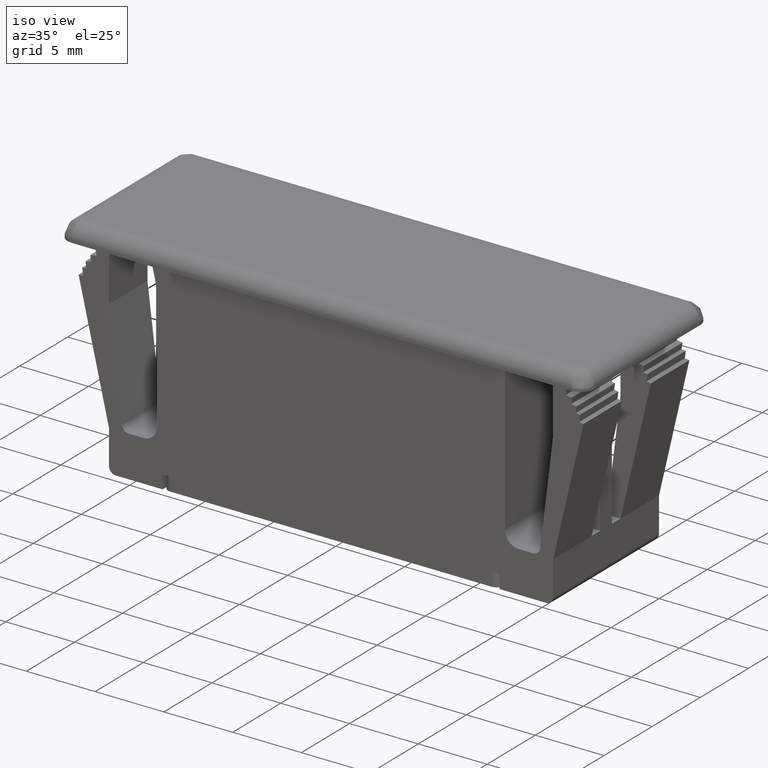
[diagram: clean part render]
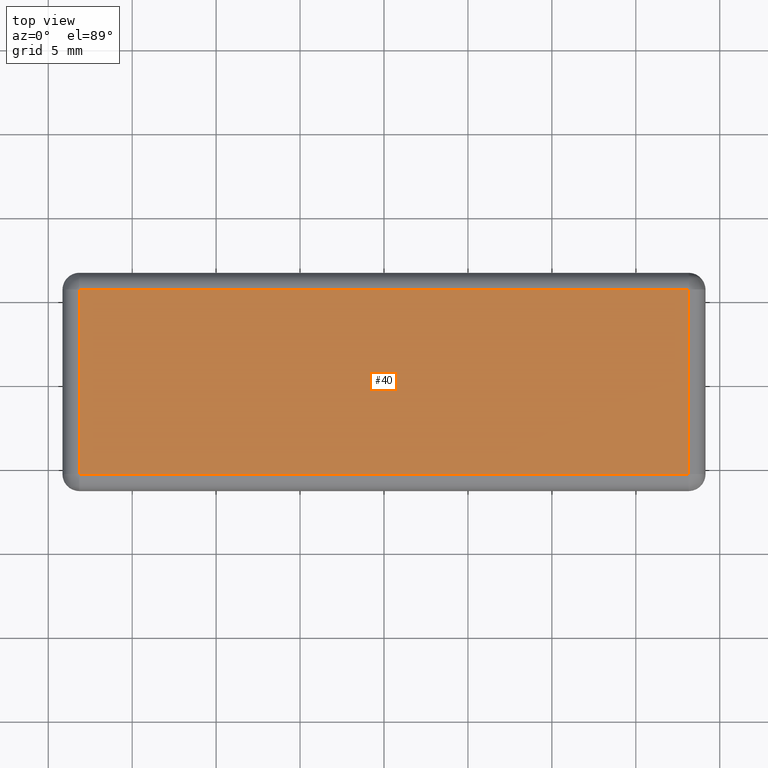
[diagram: tour spotlight — one face highlighted and labeled with its STEP entity id]
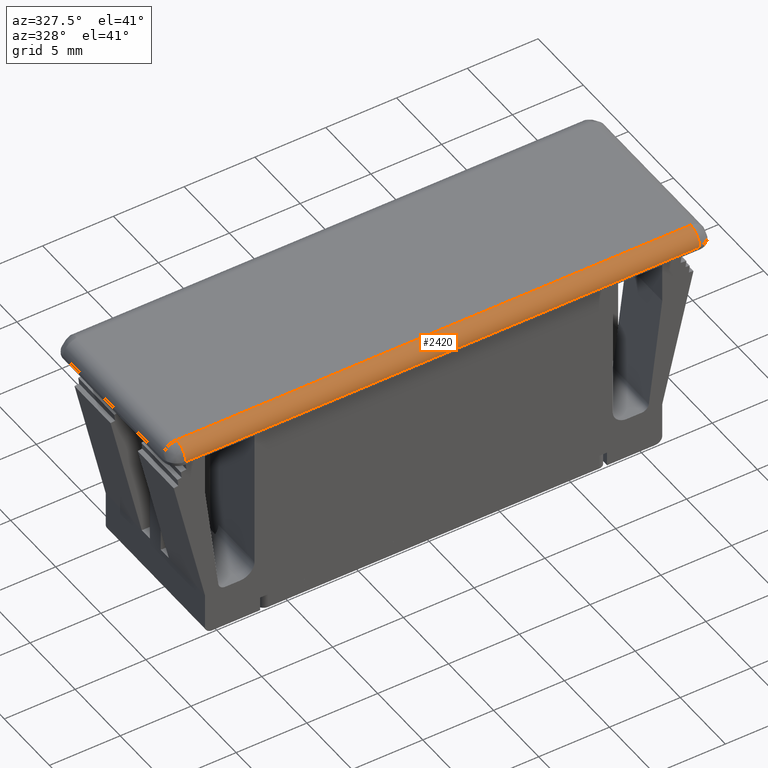
[diagram: tour spotlight — one face highlighted and labeled with its STEP entity id]
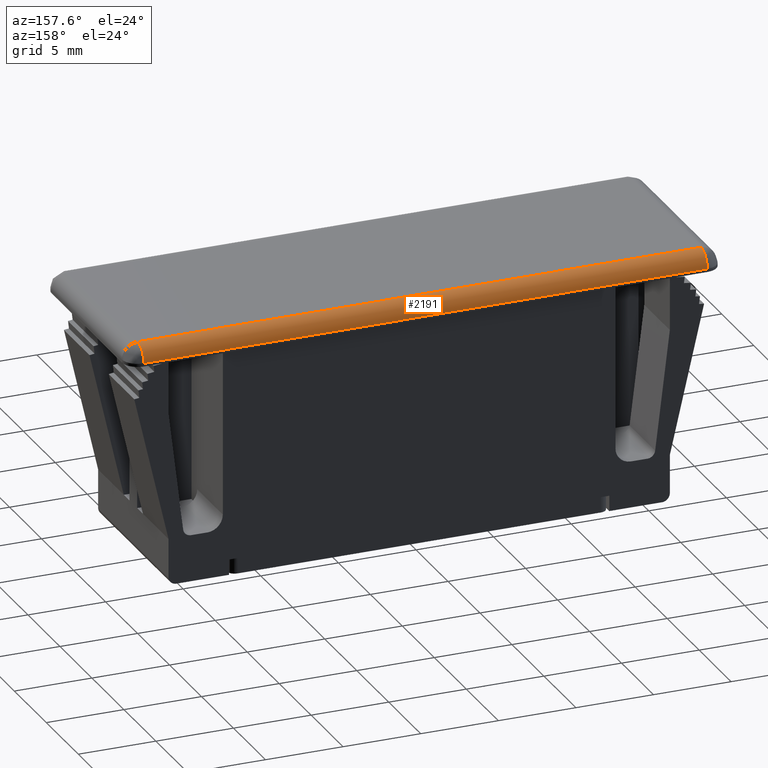
[diagram: tour spotlight — one face highlighted and labeled with its STEP entity id]
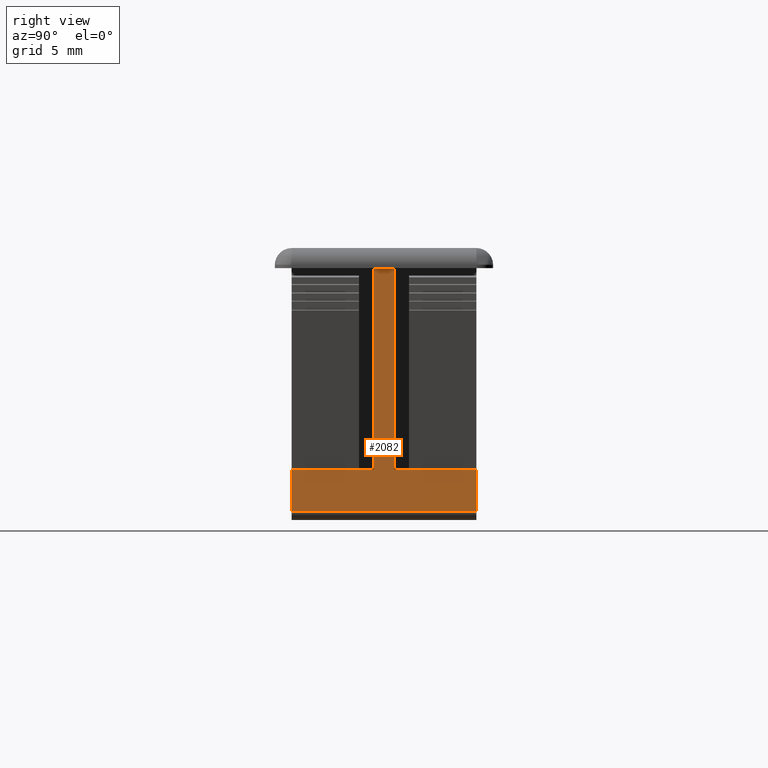
[diagram: tour spotlight — one face highlighted and labeled with its STEP entity id]
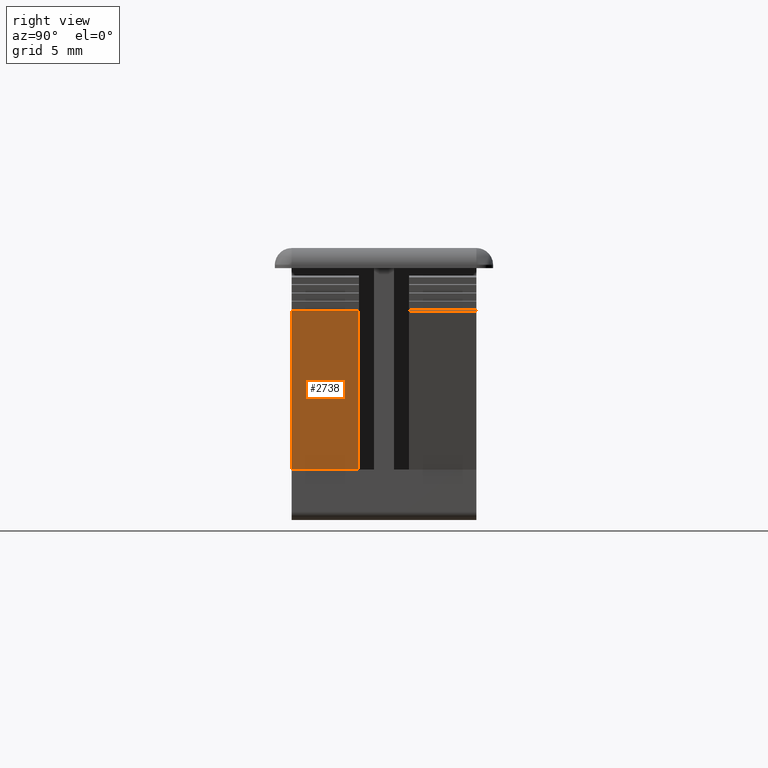
[diagram: tour spotlight — one face highlighted and labeled with its STEP entity id]
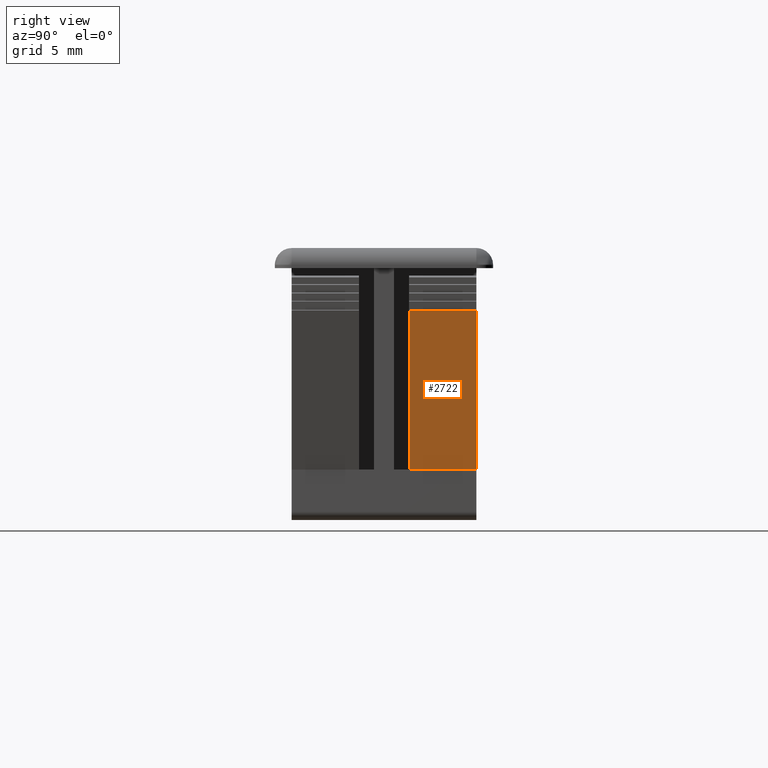
[diagram: tour spotlight — one face highlighted and labeled with its STEP entity id]
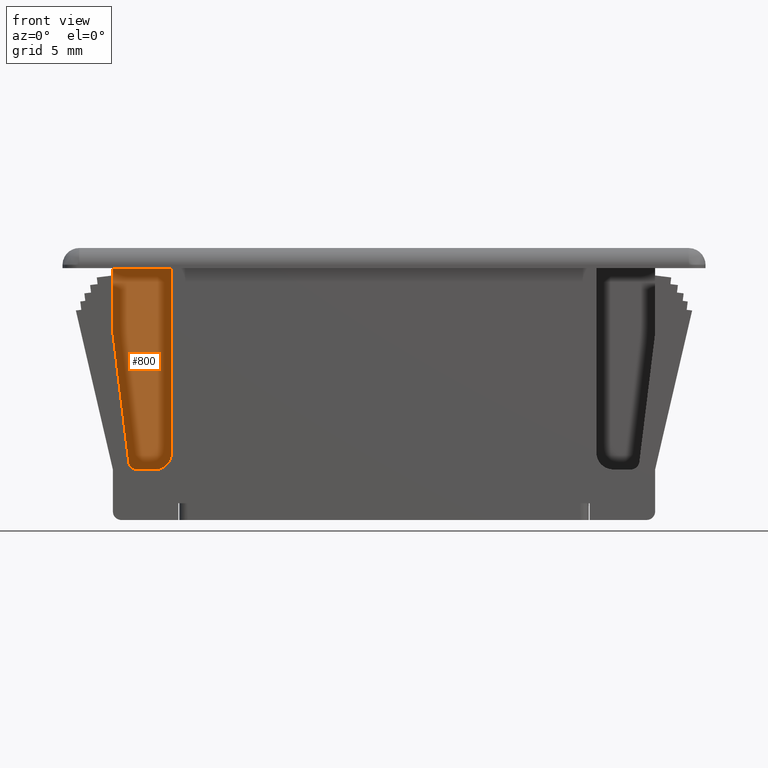
[diagram: tour spotlight — one face highlighted and labeled with its STEP entity id]
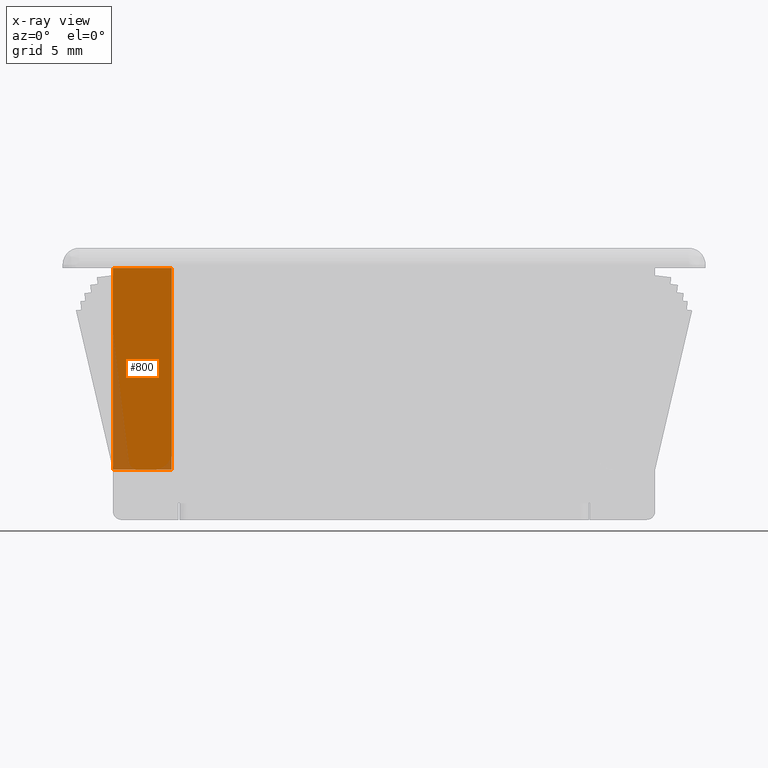
[diagram: x-ray of the same camera — body ghosted, this tour face saturated]
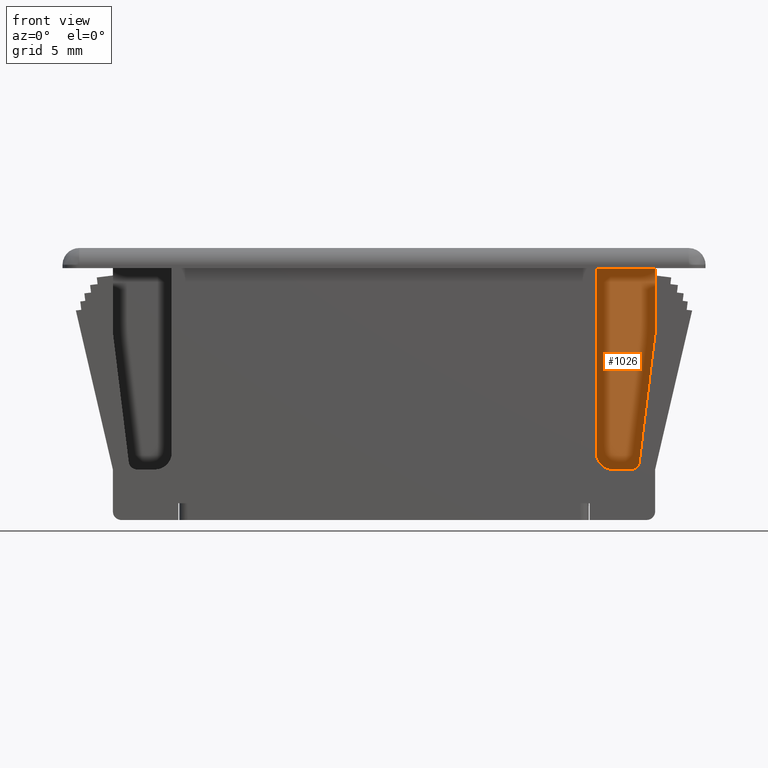
[diagram: tour spotlight — one face highlighted and labeled with its STEP entity id]
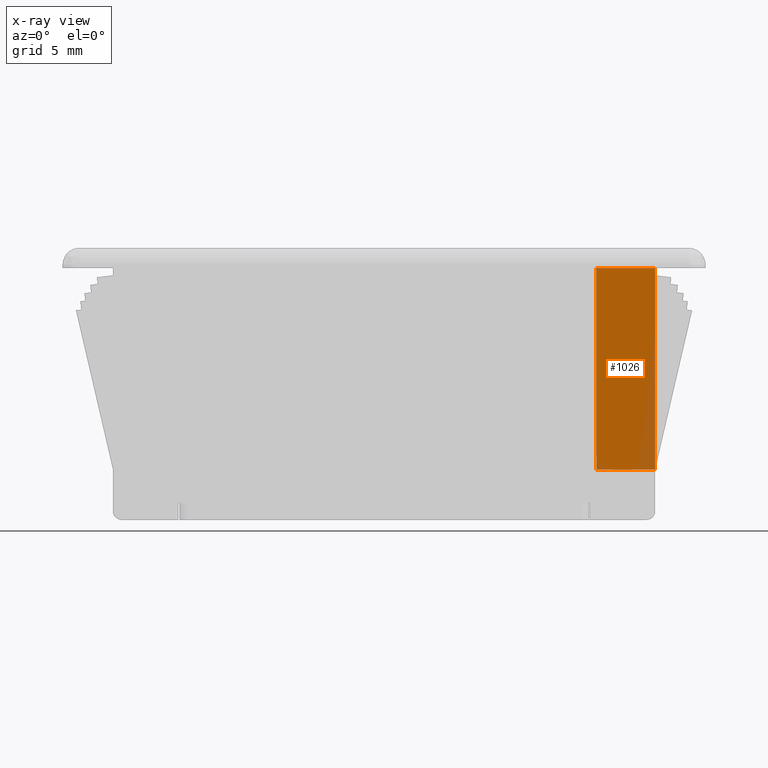
[diagram: x-ray of the same camera — body ghosted, this tour face saturated]
A machine part: a face-by-face anatomy tour. The part has 120 B-rep faces; the first image is the clean iso view, then the 8 largest visible faces are spotlighted one at a time (largest first), each with its STEP entity span.

Face 1 — top view, entity #40. In plain terms, the highlighted face is a freeform B-spline surface patch.
Definition (entity closure, byte-faithful):
#5=CARTESIAN_POINT('',(-19.963184929643820,6.049449978679864,0.0));
#6=CARTESIAN_POINT('',(19.963185903285439,6.049449978679864,0.0));
#7=CARTESIAN_POINT('',(-19.963184929643820,-6.049450273722856,0.0));
#8=CARTESIAN_POINT('',(19.963185903285439,-6.049450273722856,0.0));
#9=B_SPLINE_SURFACE_WITH_KNOTS('',1,1,((#5,#7),(#6,#8)),.UNSPECIFIED.,.F.,.F.,.U.,(2,2),(2,2),(0.0,39.926370832929258),(0.0,12.098900252402720),.UNSPECIFIED.);
#10=CARTESIAN_POINT('',(-18.150000000000251,-5.500000000000000,0.0));
#11=VERTEX_POINT('',#10);
#12=CARTESIAN_POINT('',(18.149999999999999,-5.500000000000000,0.0));
#13=VERTEX_POINT('',#12);
#14=CARTESIAN_POINT('',(-18.150000000000251,-5.500000000000000,0.0));
#15=CARTESIAN_POINT('',(18.149999999999999,-5.500000000000000,0.0));
#16=QUASI_UNIFORM_CURVE('',1,(#14,#15),.UNSPECIFIED.,.F.,.U.);
#17=EDGE_CURVE('',#11,#13,#16,.T.);
#18=ORIENTED_EDGE('',*,*,#17,.T.);
#19=CARTESIAN_POINT('',(18.149999999999999,5.500000000000000,0.0));
#20=VERTEX_POINT('',#19);
#21=CARTESIAN_POINT('',(18.149999999999999,-5.500000000000000,0.0));
#22=CARTESIAN_POINT('',(18.149999999999999,5.500000000000000,0.0));
#23=QUASI_UNIFORM_CURVE('',1,(#21,#22),.UNSPECIFIED.,.F.,.U.);
#24=EDGE_CURVE('',#13,#20,#23,.T.);
#25=ORIENTED_EDGE('',*,*,#24,.T.);
#26=CARTESIAN_POINT('',(-18.149999999999750,5.500000000000000,0.0));
#27=VERTEX_POINT('',#26);
#28=CARTESIAN_POINT('',(18.149999999999999,5.500000000000000,0.0));
#29=CARTESIAN_POINT('',(-18.149999999999750,5.500000000000000,0.0));
#30=QUASI_UNIFORM_CURVE('',1,(#28,#29),.UNSPECIFIED.,.F.,.U.);
#31=EDGE_CURVE('',#20,#27,#30,.T.);
#32=ORIENTED_EDGE('',*,*,#31,.T.);
#33=CARTESIAN_POINT('',(-18.149999999999750,5.500000000000000,0.0));
#34=CARTESIAN_POINT('',(-18.150000000000251,-5.500000000000000,0.0));
#35=QUASI_UNIFORM_CURVE('',1,(#33,#34),.UNSPECIFIED.,.F.,.U.);
#36=EDGE_CURVE('',#27,#11,#35,.T.);
#37=ORIENTED_EDGE('',*,*,#36,.T.);
#38=EDGE_LOOP('',(#18,#25,#32,#37));
#39=FACE_OUTER_BOUND('',#38,.T.);
#40=ADVANCED_FACE('',(#39),#9,.F.);

Face 2 — auxiliary view, entity #2420. In plain terms, the highlighted face is a freeform B-spline surface patch.
Definition (entity closure, byte-faithful):
#10=CARTESIAN_POINT('',(-18.150000000000251,-5.500000000000000,0.0));
#11=VERTEX_POINT('',#10);
#12=CARTESIAN_POINT('',(18.149999999999999,-5.500000000000000,0.0));
#13=VERTEX_POINT('',#12);
#14=CARTESIAN_POINT('',(-18.150000000000251,-5.500000000000000,0.0));
#15=CARTESIAN_POINT('',(18.149999999999999,-5.500000000000000,0.0));
#16=QUASI_UNIFORM_CURVE('',1,(#14,#15),.UNSPECIFIED.,.F.,.U.);
#17=EDGE_CURVE('',#11,#13,#16,.T.);
#2311=CARTESIAN_POINT('',(18.149999999999999,-6.500000000000000,-1.0));
#2312=VERTEX_POINT('',#2311);
#2313=CARTESIAN_POINT('',(18.149999999999999,-5.500000000000000,0.0));
#2314=CARTESIAN_POINT('',(18.150000000000002,-6.500000000000001,0.0));
#2315=CARTESIAN_POINT('',(18.149999999999999,-6.500000000000000,-1.0));
#2323=(BOUNDED_CURVE()B_SPLINE_CURVE(2,(#2313,#2314,#2315),.UNSPECIFIED.,.F.,.U.)CURVE()GEOMETRIC_REPRESENTATION_ITEM()QUASI_UNIFORM_CURVE()RATIONAL_B_SPLINE_CURVE((1.0,0.707106781186548,1.0))REPRESENTATION_ITEM(''));
#2324=EDGE_CURVE('',#13,#2312,#2323,.T.);
#2382=CARTESIAN_POINT('',(19.057500000000012,-5.473823051692127,-0.000342675024443));
#2383=CARTESIAN_POINT('',(-19.080187500000260,-5.473823051692127,-0.000342675024443));
#2384=CARTESIAN_POINT('',(19.057500000000005,-6.574984800554720,0.028492260166261));
#2385=CARTESIAN_POINT('',(-19.080187500000253,-6.574984800554720,0.028492260166261));
#2386=CARTESIAN_POINT('',(19.057500000000015,-6.497524479380811,-1.070320075625985));
#2387=CARTESIAN_POINT('',(-19.080187500000267,-6.497524479380811,-1.070320075625985));
#2395=(BOUNDED_SURFACE()B_SPLINE_SURFACE(1,2,((#2382,#2384,#2386),(#2383,#2385,#2387)),.UNSPECIFIED.,.F.,.F.,.U.)B_SPLINE_SURFACE_WITH_KNOTS((2,2),(3,3),(0.0,38.137687500000283),(0.0,0.994518632334191),.UNSPECIFIED.)GEOMETRIC_REPRESENTATION_ITEM()RATIONAL_B_SPLINE_SURFACE(((1.0,0.670944223154768,0.996392648609106),(1.0,0.670944223154768,0.996392648609106)))REPRESENTATION_ITEM('')SURFACE());
#2396=CARTESIAN_POINT('',(-18.149999999999999,-6.500000000000000,-1.0));
#2397=VERTEX_POINT('',#2396);
#2398=CARTESIAN_POINT('',(-18.150000000000251,-5.500000000000000,0.0));
#2399=CARTESIAN_POINT('',(-18.150000000000002,-6.500000000000001,0.0));
#2400=CARTESIAN_POINT('',(-18.149999999999999,-6.500000000000000,-1.0));
#2408=(BOUNDED_CURVE()B_SPLINE_CURVE(2,(#2398,#2399,#2400),.UNSPECIFIED.,.F.,.U.)CURVE()GEOMETRIC_REPRESENTATION_ITEM()QUASI_UNIFORM_CURVE()RATIONAL_B_SPLINE_CURVE((1.0,0.707106781186548,1.0))REPRESENTATION_ITEM(''));
#2409=EDGE_CURVE('',#11,#2397,#2408,.T.);
#2410=ORIENTED_EDGE('',*,*,#2409,.T.);
#2411=CARTESIAN_POINT('',(18.149999999999999,-6.500000000000000,-1.0));
#2412=CARTESIAN_POINT('',(-18.149999999999999,-6.500000000000000,-1.0));
#2413=QUASI_UNIFORM_CURVE('',1,(#2411,#2412),.UNSPECIFIED.,.F.,.U.);
#2414=EDGE_CURVE('',#2312,#2397,#2413,.T.);
#2415=ORIENTED_EDGE('',*,*,#2414,.F.);
#2416=ORIENTED_EDGE('',*,*,#2324,.F.);
#2417=ORIENTED_EDGE('',*,*,#17,.F.);
#2418=EDGE_LOOP('',(#2410,#2415,#2416,#2417));
#2419=FACE_OUTER_BOUND('',#2418,.T.);
#2420=ADVANCED_FACE('',(#2419),#2395,.T.);

Face 3 — auxiliary view, entity #2191. In plain terms, the highlighted face is a freeform B-spline surface patch.
Definition (entity closure, byte-faithful):
#19=CARTESIAN_POINT('',(18.149999999999999,5.500000000000000,0.0));
#20=VERTEX_POINT('',#19);
#26=CARTESIAN_POINT('',(-18.149999999999750,5.500000000000000,0.0));
#27=VERTEX_POINT('',#26);
#28=CARTESIAN_POINT('',(18.149999999999999,5.500000000000000,0.0));
#29=CARTESIAN_POINT('',(-18.149999999999750,5.500000000000000,0.0));
#30=QUASI_UNIFORM_CURVE('',1,(#28,#29),.UNSPECIFIED.,.F.,.U.);
#31=EDGE_CURVE('',#20,#27,#30,.T.);
#2122=CARTESIAN_POINT('',(18.149999999999999,6.500000000000000,-1.0));
#2123=VERTEX_POINT('',#2122);
#2137=CARTESIAN_POINT('',(18.149999999999999,6.500000000000000,-1.0));
#2138=CARTESIAN_POINT('',(18.150000000000002,6.500000000000001,0.0));
#2139=CARTESIAN_POINT('',(18.149999999999999,5.500000000000000,0.0));
#2147=(BOUNDED_CURVE()B_SPLINE_CURVE(2,(#2137,#2138,#2139),.UNSPECIFIED.,.F.,.U.)CURVE()GEOMETRIC_REPRESENTATION_ITEM()QUASI_UNIFORM_CURVE()RATIONAL_B_SPLINE_CURVE((1.0,0.707106781186548,1.0))REPRESENTATION_ITEM(''));
#2148=EDGE_CURVE('',#2123,#20,#2147,.T.);
#2153=CARTESIAN_POINT('',(-19.057499999999749,5.473823051692127,-0.000342675024443));
#2154=CARTESIAN_POINT('',(19.080187500000001,5.473823051692127,-0.000342675024443));
#2155=CARTESIAN_POINT('',(-19.057499999999752,6.574984800554720,0.028492260166261));
#2156=CARTESIAN_POINT('',(19.080187499999997,6.574984800554720,0.028492260166261));
#2157=CARTESIAN_POINT('',(-19.057499999999742,6.497524479380811,-1.070320075625985));
#2158=CARTESIAN_POINT('',(19.080187500000005,6.497524479380811,-1.070320075625985));
#2166=(BOUNDED_SURFACE()B_SPLINE_SURFACE(1,2,((#2153,#2155,#2157),(#2154,#2156,#2158)),.UNSPECIFIED.,.F.,.F.,.U.)B_SPLINE_SURFACE_WITH_KNOTS((2,2),(3,3),(0.0,38.137687499999750),(0.0,0.994518632334191),.UNSPECIFIED.)GEOMETRIC_REPRESENTATION_ITEM()RATIONAL_B_SPLINE_SURFACE(((1.0,0.670944223154768,0.996392648609106),(1.0,0.670944223154768,0.996392648609106)))REPRESENTATION_ITEM('')SURFACE());
#2167=CARTESIAN_POINT('',(-18.149999999999750,6.500000000000000,-1.0));
#2168=VERTEX_POINT('',#2167);
#2169=CARTESIAN_POINT('',(-18.149999999999750,6.500000000000000,-1.0));
#2170=CARTESIAN_POINT('',(-18.149999999999746,6.500000000000001,0.0));
#2171=CARTESIAN_POINT('',(-18.149999999999750,5.500000000000000,0.0));
#2179=(BOUNDED_CURVE()B_SPLINE_CURVE(2,(#2169,#2170,#2171),.UNSPECIFIED.,.F.,.U.)CURVE()GEOMETRIC_REPRESENTATION_ITEM()QUASI_UNIFORM_CURVE()RATIONAL_B_SPLINE_CURVE((1.0,0.707106781186548,1.0))REPRESENTATION_ITEM(''));
#2180=EDGE_CURVE('',#2168,#27,#2179,.T.);
#2181=ORIENTED_EDGE('',*,*,#2180,.T.);
#2182=ORIENTED_EDGE('',*,*,#31,.F.);
#2183=ORIENTED_EDGE('',*,*,#2148,.F.);
#2184=CARTESIAN_POINT('',(-18.149999999999750,6.500000000000000,-1.0));
#2185=CARTESIAN_POINT('',(18.149999999999999,6.500000000000000,-1.0));
#2186=QUASI_UNIFORM_CURVE('',1,(#2184,#2185),.UNSPECIFIED.,.F.,.U.);
#2187=EDGE_CURVE('',#2168,#2123,#2186,.T.);
#2188=ORIENTED_EDGE('',*,*,#2187,.F.);
#2189=EDGE_LOOP('',(#2181,#2182,#2183,#2188));
#2190=FACE_OUTER_BOUND('',#2189,.T.);
#2191=ADVANCED_FACE('',(#2190),#2166,.T.);

Face 4 — right view, entity #2082. In plain terms, the highlighted face is a freeform B-spline surface patch.
Definition (entity closure, byte-faithful):
#960=CARTESIAN_POINT('',(16.150000000000450,0.600000000000051,-1.200000000000016));
#961=VERTEX_POINT('',#960);
#962=CARTESIAN_POINT('',(16.150000000000450,0.600000000000051,-13.199999999916900));
#963=VERTEX_POINT('',#962);
#964=CARTESIAN_POINT('',(16.150000000000450,0.600000000000051,-1.200000000000016));
#965=CARTESIAN_POINT('',(16.150000000000450,0.600000000000051,-13.199999999916900));
#966=QUASI_UNIFORM_CURVE('',1,(#964,#965),.UNSPECIFIED.,.F.,.U.);
#967=EDGE_CURVE('',#961,#963,#966,.T.);
#996=CARTESIAN_POINT('',(16.149999999994350,-0.599999999999934,-13.199999999926320));
#997=VERTEX_POINT('',#996);
#998=CARTESIAN_POINT('',(16.150000000000450,-0.599999999999938,-1.200000000000016));
#999=VERTEX_POINT('',#998);
#1000=CARTESIAN_POINT('',(16.149999999994350,-0.599999999999934,-13.199999999926320));
#1001=CARTESIAN_POINT('',(16.150000000000450,-0.599999999999938,-1.200000000000016));
#1002=QUASI_UNIFORM_CURVE('',1,(#1000,#1001),.UNSPECIFIED.,.F.,.U.);
#1003=EDGE_CURVE('',#997,#999,#1002,.T.);
#1185=CARTESIAN_POINT('',(16.149999999994350,-1.499999999999946,-13.199999999926320));
#1186=VERTEX_POINT('',#1185);
#1220=CARTESIAN_POINT('',(16.150000000000450,1.500000000000055,-13.199999999917461));
#1221=VERTEX_POINT('',#1220);
#1471=CARTESIAN_POINT('',(16.149999999994350,5.500000000000000,-13.199999999926320));
#1472=VERTEX_POINT('',#1471);
#1478=CARTESIAN_POINT('',(16.150000000000450,5.500000000000000,-15.699999999999999));
#1479=VERTEX_POINT('',#1478);
#1480=CARTESIAN_POINT('',(16.149999999994350,5.500000000000000,-13.199999999926320));
#1481=CARTESIAN_POINT('',(16.150000000000450,5.500000000000000,-15.699999999999999));
#1482=QUASI_UNIFORM_CURVE('',1,(#1480,#1481),.UNSPECIFIED.,.F.,.U.);
#1483=EDGE_CURVE('',#1472,#1479,#1482,.T.);
#1723=CARTESIAN_POINT('',(16.150000000000450,-5.500000000000000,-15.699999999999999));
#1724=VERTEX_POINT('',#1723);
#1738=CARTESIAN_POINT('',(16.149999999994350,-5.500000000000000,-13.199999999926320));
#1739=VERTEX_POINT('',#1738);
#1740=CARTESIAN_POINT('',(16.149999999994350,-5.500000000000000,-13.199999999926320));
#1741=CARTESIAN_POINT('',(16.150000000000450,-5.500000000000000,-15.699999999999999));
#1742=QUASI_UNIFORM_CURVE('',1,(#1740,#1741),.UNSPECIFIED.,.F.,.U.);
#1743=EDGE_CURVE('',#1739,#1724,#1742,.T.);
#2035=CARTESIAN_POINT('',(16.150000000000450,-5.500000000000000,-15.699999999999999));
#2036=CARTESIAN_POINT('',(16.150000000000450,5.500000000000000,-15.699999999999999));
#2037=QUASI_UNIFORM_CURVE('',1,(#2035,#2036),.UNSPECIFIED.,.F.,.U.);
#2038=EDGE_CURVE('',#1724,#1479,#2037,.T.);
#2045=CARTESIAN_POINT('',(16.150000000000450,-6.049449978679864,-0.475725028103830));
#2046=CARTESIAN_POINT('',(16.150000000000450,-6.049449978679864,-16.424275360816502));
#2047=CARTESIAN_POINT('',(16.150000000000450,6.049450273722856,-0.475725028103830));
#2048=CARTESIAN_POINT('',(16.150000000000450,6.049450273722856,-16.424275360816502));
#2049=B_SPLINE_SURFACE_WITH_KNOTS('',1,1,((#2045,#2047),(#2046,#2048)),.UNSPECIFIED.,.F.,.F.,.U.,(2,2),(2,2),(0.0,15.948550332712660),(0.0,12.098900252402720),.UNSPECIFIED.);
#2050=ORIENTED_EDGE('',*,*,#1483,.F.);
#2051=CARTESIAN_POINT('',(16.150000000000450,1.500000000000055,-13.199999999917461));
#2052=CARTESIAN_POINT('',(16.149999999994350,5.500000000000000,-13.199999999926320));
#2053=QUASI_UNIFORM_CURVE('',1,(#2051,#2052),.UNSPECIFIED.,.F.,.U.);
#2054=EDGE_CURVE('',#1221,#1472,#2053,.T.);
#2055=ORIENTED_EDGE('',*,*,#2054,.F.);
#2056=CARTESIAN_POINT('',(16.150000000000450,0.600000000000051,-13.199999999916900));
#2057=CARTESIAN_POINT('',(16.150000000000450,1.500000000000055,-13.199999999917461));
#2058=QUASI_UNIFORM_CURVE('',1,(#2056,#2057),.UNSPECIFIED.,.F.,.U.);
#2059=EDGE_CURVE('',#963,#1221,#2058,.T.);
#2060=ORIENTED_EDGE('',*,*,#2059,.F.);
#2061=ORIENTED_EDGE('',*,*,#967,.F.);
#2062=CARTESIAN_POINT('',(16.150000000000450,-0.599999999999938,-1.200000000000016));
#2063=CARTESIAN_POINT('',(16.150000000000450,0.600000000000051,-1.200000000000016));
#2064=QUASI_UNIFORM_CURVE('',1,(#2062,#2063),.UNSPECIFIED.,.F.,.U.);
#2065=EDGE_CURVE('',#999,#961,#2064,.T.);
#2066=ORIENTED_EDGE('',*,*,#2065,.F.);
#2067=ORIENTED_EDGE('',*,*,#1003,.F.);
#2068=CARTESIAN_POINT('',(16.149999999994350,-1.499999999999946,-13.199999999926320));
#2069=CARTESIAN_POINT('',(16.149999999994350,-0.599999999999934,-13.199999999926320));
#2070=QUASI_UNIFORM_CURVE('',1,(#2068,#2069),.UNSPECIFIED.,.F.,.U.);
#2071=EDGE_CURVE('',#1186,#997,#2070,.T.);
#2072=ORIENTED_EDGE('',*,*,#2071,.F.);
#2073=CARTESIAN_POINT('',(16.149999999994350,-5.500000000000000,-13.199999999926320));
#2074=CARTESIAN_POINT('',(16.149999999994350,-1.499999999999946,-13.199999999926320));
#2075=QUASI_UNIFORM_CURVE('',1,(#2073,#2074),.UNSPECIFIED.,.F.,.U.);
#2076=EDGE_CURVE('',#1739,#1186,#2075,.T.);
#2077=ORIENTED_EDGE('',*,*,#2076,.F.);
#2078=ORIENTED_EDGE('',*,*,#1743,.T.);
#2079=ORIENTED_EDGE('',*,*,#2038,.T.);
#2080=EDGE_LOOP('',(#2050,#2055,#2060,#2061,#2066,#2067,#2072,#2077,#2078,#2079));
#2081=FACE_OUTER_BOUND('',#2080,.T.);
#2082=ADVANCED_FACE('',(#2081),#2049,.T.);

Face 5 — right view, entity #2738. In plain terms, the highlighted face is a freeform B-spline surface patch.
Definition (entity closure, byte-faithful):
#1178=CARTESIAN_POINT('',(18.355609146990648,-1.499999999999946,-3.721429881298120));
#1179=VERTEX_POINT('',#1178);
#1185=CARTESIAN_POINT('',(16.149999999994350,-1.499999999999946,-13.199999999926320));
#1186=VERTEX_POINT('',#1185);
#1187=CARTESIAN_POINT('',(16.149999999994350,-1.499999999999946,-13.199999999926320));
#1188=CARTESIAN_POINT('',(18.355609146990648,-1.499999999999946,-3.721429881298120));
#1189=QUASI_UNIFORM_CURVE('',1,(#1187,#1188),.UNSPECIFIED.,.F.,.U.);
#1190=EDGE_CURVE('',#1186,#1179,#1189,.T.);
#1738=CARTESIAN_POINT('',(16.149999999994350,-5.500000000000000,-13.199999999926320));
#1739=VERTEX_POINT('',#1738);
#1745=CARTESIAN_POINT('',(18.355609146990648,-5.500000000000000,-3.721429881298120));
#1746=VERTEX_POINT('',#1745);
#1747=CARTESIAN_POINT('',(18.355609146990648,-5.500000000000000,-3.721429881298120));
#1748=CARTESIAN_POINT('',(16.149999999994350,-5.500000000000000,-13.199999999926320));
#1749=QUASI_UNIFORM_CURVE('',1,(#1747,#1748),.UNSPECIFIED.,.F.,.U.);
#1750=EDGE_CURVE('',#1746,#1739,#1749,.T.);
#2073=CARTESIAN_POINT('',(16.149999999994350,-5.500000000000000,-13.199999999926320));
#2074=CARTESIAN_POINT('',(16.149999999994350,-1.499999999999946,-13.199999999926320));
#2075=QUASI_UNIFORM_CURVE('',1,(#2073,#2074),.UNSPECIFIED.,.F.,.U.);
#2076=EDGE_CURVE('',#1739,#1186,#2075,.T.);
#2723=CARTESIAN_POINT('',(18.465779319608220,-5.699799992247227,-3.247975322243950));
#2724=CARTESIAN_POINT('',(16.039829768217739,-5.699799992247227,-13.673454813215560));
#2725=CARTESIAN_POINT('',(18.465779319608220,-1.300199900464359,-3.247975322243950));
#2726=CARTESIAN_POINT('',(16.039829768217739,-1.300199900464359,-13.673454813215560));
#2727=B_SPLINE_SURFACE_WITH_KNOTS('',1,1,((#2723,#2725),(#2724,#2726)),.UNSPECIFIED.,.F.,.F.,.U.,(2,2),(2,2),(0.0,10.704011109979350),(0.0,4.399600091782868),.UNSPECIFIED.);
#2728=ORIENTED_EDGE('',*,*,#2076,.T.);
#2729=ORIENTED_EDGE('',*,*,#1190,.T.);
#2730=CARTESIAN_POINT('',(18.355609146990648,-5.500000000000000,-3.721429881298120));
#2731=CARTESIAN_POINT('',(18.355609146990648,-1.499999999999946,-3.721429881298120));
#2732=QUASI_UNIFORM_CURVE('',1,(#2730,#2731),.UNSPECIFIED.,.F.,.U.);
#2733=EDGE_CURVE('',#1746,#1179,#2732,.T.);
#2734=ORIENTED_EDGE('',*,*,#2733,.F.);
#2735=ORIENTED_EDGE('',*,*,#1750,.T.);
#2736=EDGE_LOOP('',(#2728,#2729,#2734,#2735));
#2737=FACE_OUTER_BOUND('',#2736,.T.);
#2738=ADVANCED_FACE('',(#2737),#2727,.T.);

Face 6 — right view, entity #2722. In plain terms, the highlighted face is a freeform B-spline surface patch.
Definition (entity closure, byte-faithful):
#1220=CARTESIAN_POINT('',(16.150000000000450,1.500000000000055,-13.199999999917461));
#1221=VERTEX_POINT('',#1220);
#1229=CARTESIAN_POINT('',(18.355609146990648,1.500000000000055,-3.721429881298120));
#1230=VERTEX_POINT('',#1229);
#1231=CARTESIAN_POINT('',(18.355609146990648,1.500000000000055,-3.721429881298120));
#1232=CARTESIAN_POINT('',(16.150000000000450,1.500000000000055,-13.199999999917461));
#1233=QUASI_UNIFORM_CURVE('',1,(#1231,#1232),.UNSPECIFIED.,.F.,.U.);
#1234=EDGE_CURVE('',#1230,#1221,#1233,.T.);
#1464=CARTESIAN_POINT('',(18.355609146990648,5.500000000000000,-3.721429881298120));
#1465=VERTEX_POINT('',#1464);
#1471=CARTESIAN_POINT('',(16.149999999994350,5.500000000000000,-13.199999999926320));
#1472=VERTEX_POINT('',#1471);
#1473=CARTESIAN_POINT('',(18.355609146990648,5.500000000000000,-3.721429881298120));
#1474=CARTESIAN_POINT('',(16.149999999994350,5.500000000000000,-13.199999999926320));
#1475=QUASI_UNIFORM_CURVE('',1,(#1473,#1474),.UNSPECIFIED.,.F.,.U.);
#1476=EDGE_CURVE('',#1465,#1472,#1475,.T.);
#2051=CARTESIAN_POINT('',(16.150000000000450,1.500000000000055,-13.199999999917461));
#2052=CARTESIAN_POINT('',(16.149999999994350,5.500000000000000,-13.199999999926320));
#2053=QUASI_UNIFORM_CURVE('',1,(#2051,#2052),.UNSPECIFIED.,.F.,.U.);
#2054=EDGE_CURVE('',#1221,#1472,#2053,.T.);
#2707=CARTESIAN_POINT('',(18.465779319608220,1.300200007752834,-3.247975322243950));
#2708=CARTESIAN_POINT('',(16.039829768217739,1.300200007752834,-13.673454813215560));
#2709=CARTESIAN_POINT('',(18.465779319608220,5.699800099535581,-3.247975322243950));
#2710=CARTESIAN_POINT('',(16.039829768217739,5.699800099535581,-13.673454813215560));
#2711=B_SPLINE_SURFACE_WITH_KNOTS('',1,1,((#2707,#2709),(#2708,#2710)),.UNSPECIFIED.,.F.,.F.,.U.,(2,2),(2,2),(0.0,10.704011109979341),(0.0,4.399600091782747),.UNSPECIFIED.);
#2712=CARTESIAN_POINT('',(18.355609146990648,1.500000000000055,-3.721429881298120));
#2713=CARTESIAN_POINT('',(18.355609146990648,5.500000000000000,-3.721429881298120));
#2714=QUASI_UNIFORM_CURVE('',1,(#2712,#2713),.UNSPECIFIED.,.F.,.U.);
#2715=EDGE_CURVE('',#1230,#1465,#2714,.T.);
#2716=ORIENTED_EDGE('',*,*,#2715,.F.);
#2717=ORIENTED_EDGE('',*,*,#1234,.T.);
#2718=ORIENTED_EDGE('',*,*,#2054,.T.);
#2719=ORIENTED_EDGE('',*,*,#1476,.F.);
#2720=EDGE_LOOP('',(#2716,#2717,#2718,#2719));
#2721=FACE_OUTER_BOUND('',#2720,.T.);
#2722=ADVANCED_FACE('',(#2721),#2711,.T.);

Face 7 — front view, entity #800. An x-ray twin of the same camera follows (body ghosted, this face saturated) — the face is partly hidden behind the body. In plain terms, the highlighted face is a freeform B-spline surface patch.
Definition (entity closure, byte-faithful):
#765=CARTESIAN_POINT('',(-16.324824993217071,-0.599999999999938,-13.799399976660570));
#766=CARTESIAN_POINT('',(-16.324824993217071,-0.599999999999938,-0.600599701252453));
#767=CARTESIAN_POINT('',(-12.475174912900670,-0.599999999999938,-13.799399976660570));
#768=CARTESIAN_POINT('',(-12.475174912900670,-0.599999999999938,-0.600599701252453));
#769=B_SPLINE_SURFACE_WITH_KNOTS('',1,1,((#765,#767),(#766,#768)),.UNSPECIFIED.,.F.,.F.,.U.,(2,2),(2,2),(0.0,13.198800275408111),(0.0,3.849650080316396),.UNSPECIFIED.);
#770=CARTESIAN_POINT('',(-16.150000000000450,-0.599999999999938,-13.199999999916180));
#771=VERTEX_POINT('',#770);
#772=CARTESIAN_POINT('',(-16.150000000000450,-0.599999999999938,-1.199999999861916));
#773=VERTEX_POINT('',#772);
#774=CARTESIAN_POINT('',(-16.150000000000450,-0.599999999999938,-13.199999999916180));
#775=CARTESIAN_POINT('',(-16.150000000000450,-0.599999999999938,-1.199999999861916));
#776=QUASI_UNIFORM_CURVE('',1,(#774,#775),.UNSPECIFIED.,.F.,.U.);
#777=EDGE_CURVE('',#771,#773,#776,.T.);
#778=ORIENTED_EDGE('',*,*,#777,.F.);
#779=CARTESIAN_POINT('',(-12.649999999994600,-0.599999999999938,-13.199999999916180));
#780=VERTEX_POINT('',#779);
#781=CARTESIAN_POINT('',(-12.649999999994600,-0.599999999999938,-13.199999999916180));
#782=CARTESIAN_POINT('',(-16.150000000000450,-0.599999999999938,-13.199999999916180));
#783=QUASI_UNIFORM_CURVE('',1,(#781,#782),.UNSPECIFIED.,.F.,.U.);
#784=EDGE_CURVE('',#780,#771,#783,.T.);
#785=ORIENTED_EDGE('',*,*,#784,.F.);
#786=CARTESIAN_POINT('',(-12.649999999994600,-0.599999999999938,-1.199999999861916));
#787=VERTEX_POINT('',#786);
#788=CARTESIAN_POINT('',(-12.649999999994600,-0.599999999999938,-13.199999999916180));
#789=CARTESIAN_POINT('',(-12.649999999994600,-0.599999999999938,-1.199999999861916));
#790=QUASI_UNIFORM_CURVE('',1,(#788,#789),.UNSPECIFIED.,.F.,.U.);
#791=EDGE_CURVE('',#780,#787,#790,.T.);
#792=ORIENTED_EDGE('',*,*,#791,.T.);
#793=CARTESIAN_POINT('',(-12.649999999994600,-0.599999999999938,-1.199999999861916));
#794=CARTESIAN_POINT('',(-16.150000000000450,-0.599999999999938,-1.199999999861916));
#795=QUASI_UNIFORM_CURVE('',1,(#793,#794),.UNSPECIFIED.,.F.,.U.);
#796=EDGE_CURVE('',#787,#773,#795,.T.);
#797=ORIENTED_EDGE('',*,*,#796,.T.);
#798=EDGE_LOOP('',(#778,#785,#792,#797));
#799=FACE_OUTER_BOUND('',#798,.T.);
#800=ADVANCED_FACE('',(#799),#769,.F.);

Face 8 — front view, entity #1026. An x-ray twin of the same camera follows (body ghosted, this face saturated) — the face is partly hidden behind the body. In plain terms, the highlighted face is a freeform B-spline surface patch.
Definition (entity closure, byte-faithful):
#991=CARTESIAN_POINT('',(12.475175006778031,-0.599999999999938,-13.799399976664310));
#992=CARTESIAN_POINT('',(12.475175006778031,-0.599999999999938,-0.600599701396944));
#993=CARTESIAN_POINT('',(16.324825087094379,-0.599999999999938,-13.799399976664310));
#994=CARTESIAN_POINT('',(16.324825087094379,-0.599999999999938,-0.600599701396944));
#995=B_SPLINE_SURFACE_WITH_KNOTS('',1,1,((#991,#993),(#992,#994)),.UNSPECIFIED.,.F.,.F.,.U.,(2,2),(2,2),(0.0,13.198800275267370),(0.0,3.849650080316348),.UNSPECIFIED.);
#996=CARTESIAN_POINT('',(16.149999999994350,-0.599999999999934,-13.199999999926320));
#997=VERTEX_POINT('',#996);
#998=CARTESIAN_POINT('',(16.150000000000450,-0.599999999999938,-1.200000000000016));
#999=VERTEX_POINT('',#998);
#1000=CARTESIAN_POINT('',(16.149999999994350,-0.599999999999934,-13.199999999926320));
#1001=CARTESIAN_POINT('',(16.150000000000450,-0.599999999999938,-1.200000000000016));
#1002=QUASI_UNIFORM_CURVE('',1,(#1000,#1001),.UNSPECIFIED.,.F.,.U.);
#1003=EDGE_CURVE('',#997,#999,#1002,.T.);
#1004=ORIENTED_EDGE('',*,*,#1003,.T.);
#1005=CARTESIAN_POINT('',(12.649999999994639,-0.599999999999934,-1.200000000000016));
#1006=VERTEX_POINT('',#1005);
#1007=CARTESIAN_POINT('',(12.649999999994639,-0.599999999999934,-1.200000000000016));
#1008=CARTESIAN_POINT('',(16.150000000000450,-0.599999999999938,-1.200000000000016));
#1009=QUASI_UNIFORM_CURVE('',1,(#1007,#1008),.UNSPECIFIED.,.F.,.U.);
#1010=EDGE_CURVE('',#1006,#999,#1009,.T.);
#1011=ORIENTED_EDGE('',*,*,#1010,.F.);
#1012=CARTESIAN_POINT('',(12.649999999994719,-0.599999999999934,-13.199999999916180));
#1013=VERTEX_POINT('',#1012);
#1014=CARTESIAN_POINT('',(12.649999999994719,-0.599999999999934,-13.199999999916180));
#1015=CARTESIAN_POINT('',(12.649999999994639,-0.599999999999934,-1.200000000000016));
#1016=QUASI_UNIFORM_CURVE('',1,(#1014,#1015),.UNSPECIFIED.,.F.,.U.);
#1017=EDGE_CURVE('',#1013,#1006,#1016,.T.);
#1018=ORIENTED_EDGE('',*,*,#1017,.F.);
#1019=CARTESIAN_POINT('',(12.649999999994719,-0.599999999999934,-13.199999999916180));
#1020=CARTESIAN_POINT('',(16.149999999994350,-0.599999999999934,-13.199999999926320));
#1021=QUASI_UNIFORM_CURVE('',1,(#1019,#1020),.UNSPECIFIED.,.F.,.U.);
#1022=EDGE_CURVE('',#1013,#997,#1021,.T.);
#1023=ORIENTED_EDGE('',*,*,#1022,.T.);
#1024=EDGE_LOOP('',(#1004,#1011,#1018,#1023));
#1025=FACE_OUTER_BOUND('',#1024,.T.);
#1026=ADVANCED_FACE('',(#1025),#995,.F.);